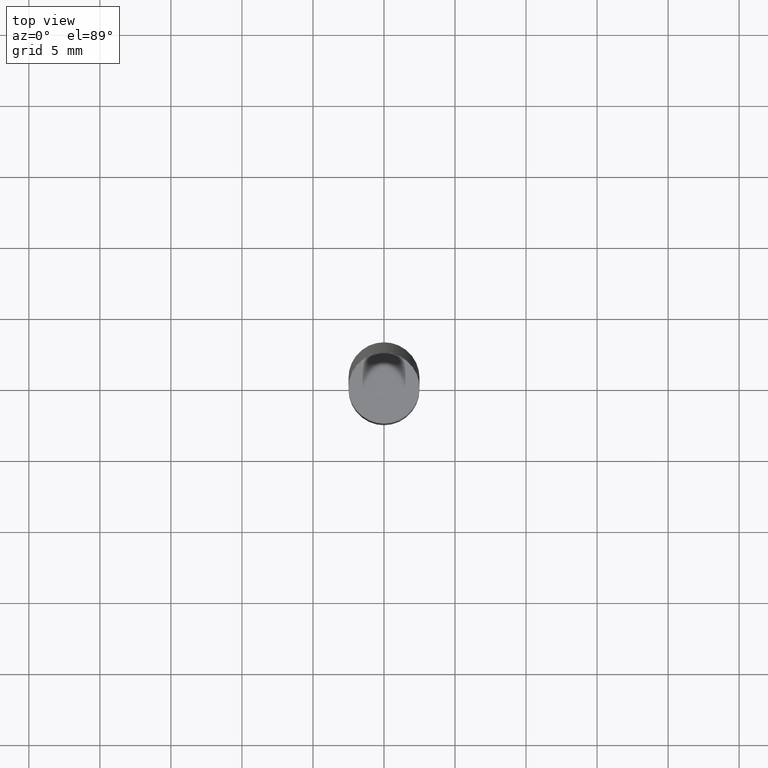
[diagram: clean part render]
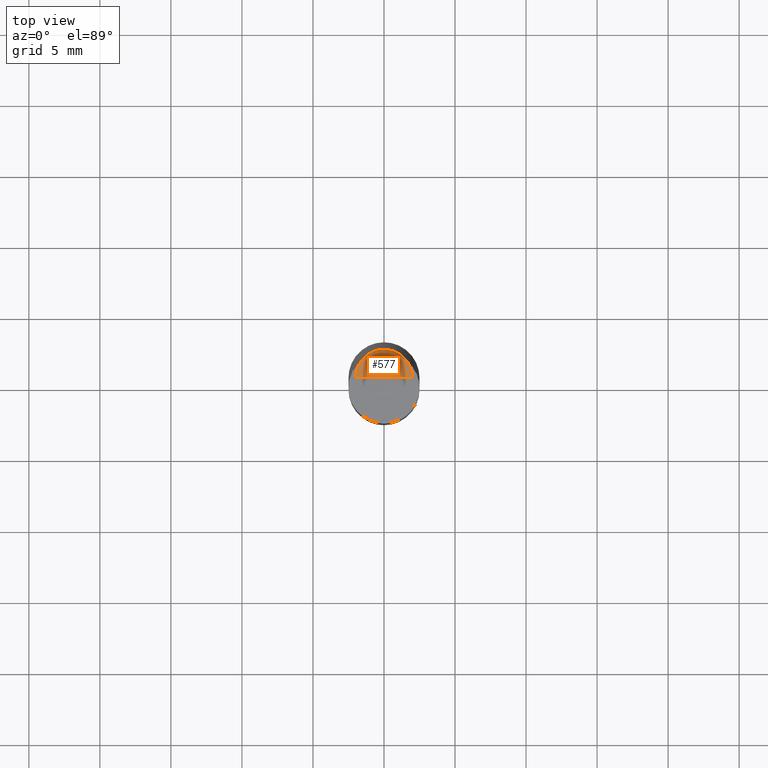
[diagram: same view with one face highlighted and labeled with its STEP entity id]
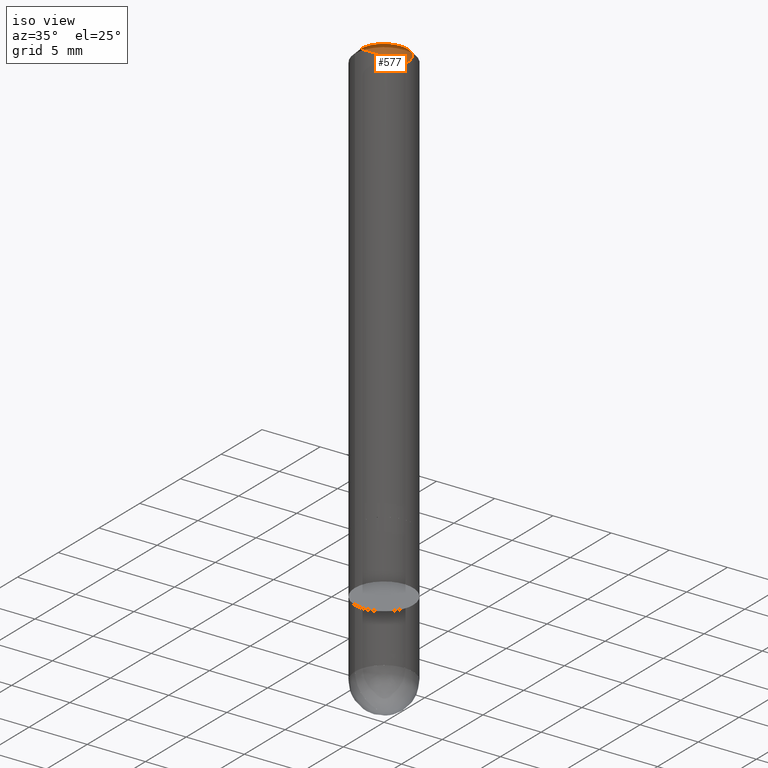
[diagram: same view with one face highlighted and labeled with its STEP entity id]
A machine part, top view. The second image highlights one B-rep face of the part: STEP entity #577.
A second angle (iso view) of the same face is appended — the face is thin or edge-on in the first view.
In plain terms, the highlighted face is a freeform B-spline surface patch.
Its self-contained STEP definition (entity closure, byte-faithful):
#358=CARTESIAN_POINT('',(2.0,0.0,37.0));
#359=CARTESIAN_POINT('',(2.0,2.0,37.0));
#360=CARTESIAN_POINT('',(0.0,2.0,37.0));
#361=CARTESIAN_POINT('',(-2.0,2.0,37.0));
#362=CARTESIAN_POINT('',(-2.0,0.0,37.0));
#363=CARTESIAN_POINT('',(0.0,0.0,37.0));
#562=(
BOUNDED_SURFACE()
B_SPLINE_SURFACE(1,2,(
(#358,#359,#360,#361,#362),
(#363,#363,#363,#363,#363)
), .UNSPECIFIED.,.F.,.F.,.F.)
B_SPLINE_SURFACE_WITH_KNOTS((2,2),(3,2,3),(
0.0,1.0),(
0.0,0.5,1.0), .UNSPECIFIED.)
GEOMETRIC_REPRESENTATION_ITEM()
RATIONAL_B_SPLINE_SURFACE(((1.0,0.707106781187,1.0,0.707106781187,1.0),
(1.0,0.707106781187,1.0,0.707106781187,1.0)
))
REPRESENTATION_ITEM('')
SURFACE()
);
#563=(
BOUNDED_CURVE()
B_SPLINE_CURVE(2,(#362,#361,#360,#359,#358),.UNSPECIFIED.,.F.,.F.)
B_SPLINE_CURVE_WITH_KNOTS((3,2,3),
(0.0,0.5,1.0),.UNSPECIFIED.)
CURVE()
GEOMETRIC_REPRESENTATION_ITEM()
RATIONAL_B_SPLINE_CURVE((1.0,0.707106781187,1.0,0.707106781187,1.0))
REPRESENTATION_ITEM('')
);
#564=(
BOUNDED_CURVE()
B_SPLINE_CURVE(1,(#358,#363),.UNSPECIFIED.,.F.,.F.)
B_SPLINE_CURVE_WITH_KNOTS((2,2),
(0.0,1.0),.UNSPECIFIED.)
CURVE()
GEOMETRIC_REPRESENTATION_ITEM()
RATIONAL_B_SPLINE_CURVE((1.0,1.0))
REPRESENTATION_ITEM('')
);
#565=(
BOUNDED_CURVE()
B_SPLINE_CURVE(1,(#363,#362),.UNSPECIFIED.,.F.,.F.)
B_SPLINE_CURVE_WITH_KNOTS((2,2),
(0.0,1.0),.UNSPECIFIED.)
CURVE()
GEOMETRIC_REPRESENTATION_ITEM()
RATIONAL_B_SPLINE_CURVE((1.0,1.0))
REPRESENTATION_ITEM('')
);
#566=VERTEX_POINT('',#358);
#567=VERTEX_POINT('',#362);
#568=VERTEX_POINT('',#363);
#569=EDGE_CURVE('',#567,#566,#563,.T.);
#570=EDGE_CURVE('',#566,#568,#564,.T.);
#571=EDGE_CURVE('',#568,#567,#565,.T.);
#572=ORIENTED_EDGE('',*,*,#569,.T.);
#573=ORIENTED_EDGE('',*,*,#570,.T.);
#574=ORIENTED_EDGE('',*,*,#571,.T.);
#575=EDGE_LOOP('',(#572,#573,#574));
#576=FACE_OUTER_BOUND('',#575,.T.);
#577=ADVANCED_FACE('',(#576),#562,.T.);